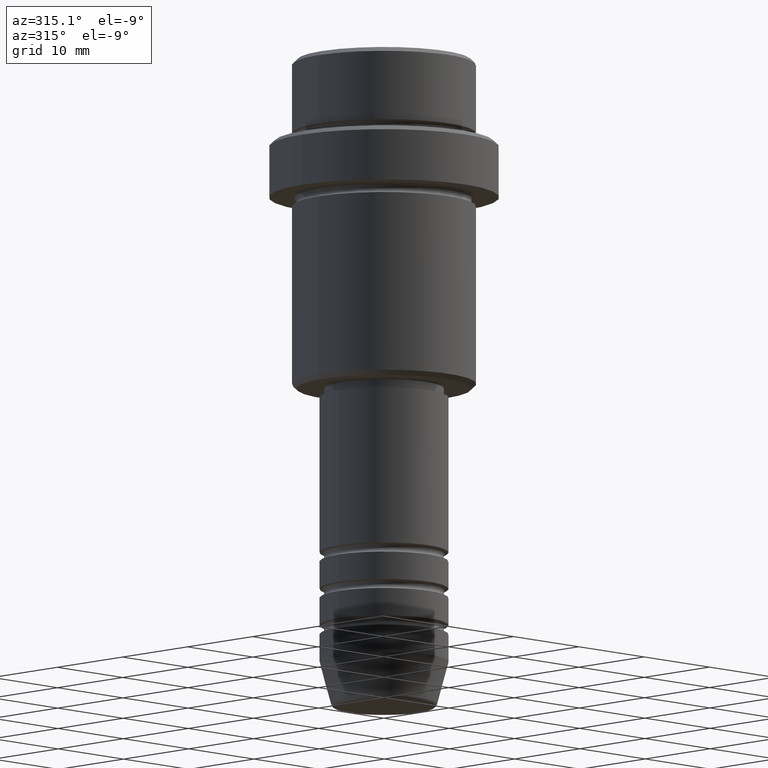
[diagram: clean part render]
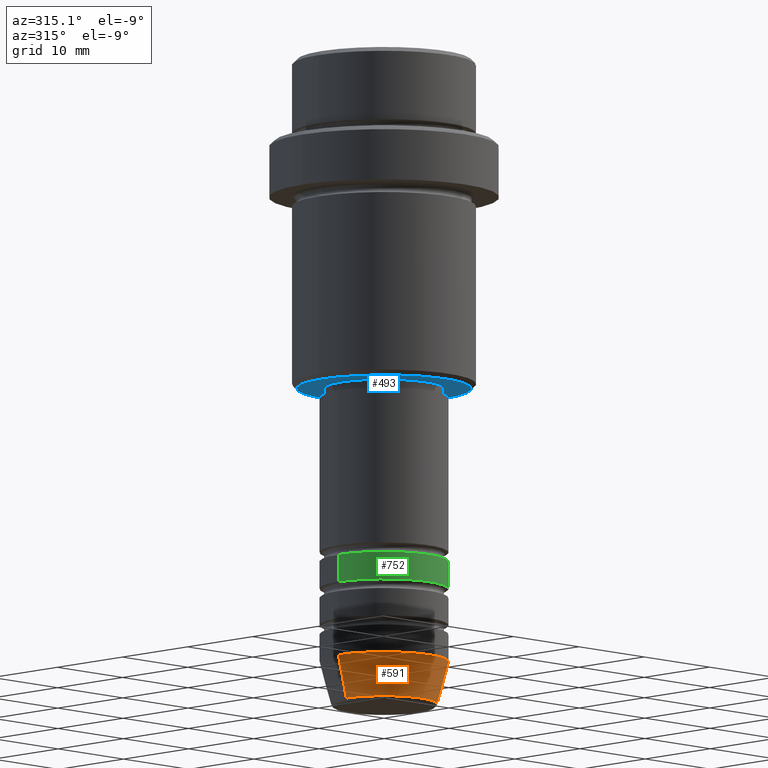
[diagram: same view with three faces highlighted in distinct colors, each labeled with its STEP entity id]
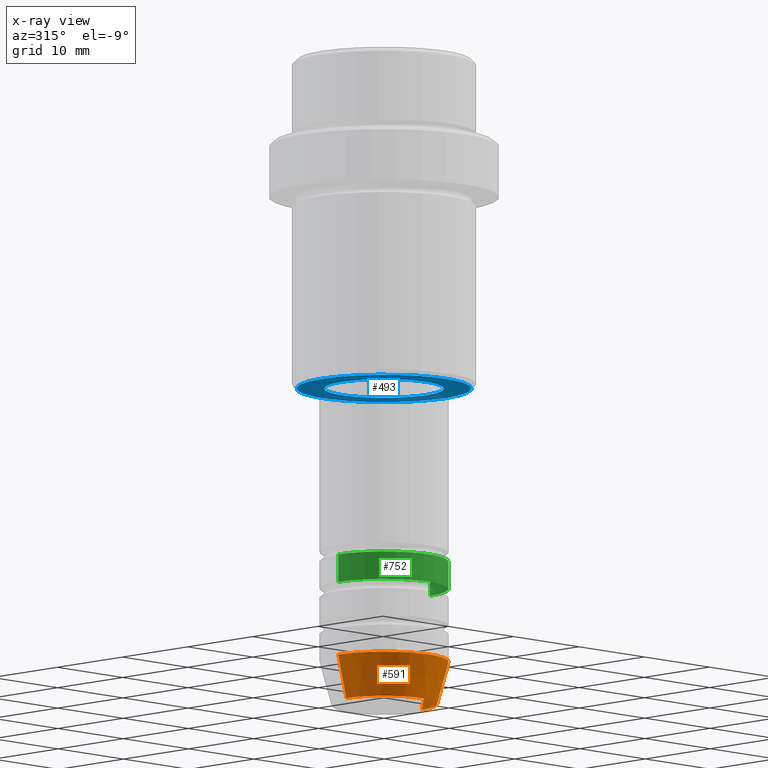
[diagram: x-ray of the same camera — body ghosted, the three highlighted faces saturated]
A machine part, auxiliary view with three faces highlighted in distinct colors.
The next image is the same camera in x-ray (body ghosted, the three faces saturated) — at least one of them is partly hidden behind the body in this view.
Their STEP definitions:

[orange] entity #591 — the highlighted conical surface has half-angle 15 deg.
#85 = DIRECTION ( 'NONE',  ( 0.2588190451025213501, 0.000000000000000000, 0.9659258262890680902 ) ) ;
#121 = VERTEX_POINT ( 'NONE', #774 ) ;
#148 = CARTESIAN_POINT ( 'NONE',  ( 7.000000000000000000, 0.000000000000000000, -66.00000000000000000 ) ) ;
#157 = VECTOR ( 'NONE', #829, 1000.000000000000000 ) ;
#187 = ORIENTED_EDGE ( 'NONE', *, *, #584, .F. ) ;
#256 = CARTESIAN_POINT ( 'NONE',  ( 7.000000000000000000, 0.000000000000000000, -66.00000000000000000 ) ) ;
#305 = AXIS2_PLACEMENT_3D ( 'NONE', #1260, #966, #994 ) ;
#341 = ORIENTED_EDGE ( 'NONE', *, *, #844, .T. ) ;
#374 = FACE_OUTER_BOUND ( 'NONE', #796, .T. ) ;
#387 = CARTESIAN_POINT ( 'NONE',  ( -7.000000000000000000, 8.572527594031473190E-16, -66.00000000000000000 ) ) ;
#403 = DIRECTION ( 'NONE',  ( 1.000000000000000000, 0.000000000000000000, 0.000000000000000000 ) ) ;
#443 = CIRCLE ( 'NONE', #1360, 7.000000000000000000 ) ;
#530 = CARTESIAN_POINT ( 'NONE',  ( -7.000000000000000000, 8.572527594031473190E-16, -66.00000000000000000 ) ) ;
#584 = EDGE_CURVE ( 'NONE', #1363, #963, #443, .T. ) ;
#591 = ADVANCED_FACE ( 'NONE', ( #374 ), #1246, .T. ) ;
#645 = EDGE_CURVE ( 'NONE', #121, #1363, #857, .T. ) ;
#707 = CARTESIAN_POINT ( 'NONE',  ( 5.759553456999433330, 0.000000000000000000, -70.62940952255127058 ) ) ;
#756 = ORIENTED_EDGE ( 'NONE', *, *, #645, .F. ) ;
#774 = CARTESIAN_POINT ( 'NONE',  ( -5.759553456999433330, 7.812973149831950787E-16, -70.62940952255127058 ) ) ;
#796 = EDGE_LOOP ( 'NONE', ( #756, #1394, #341, #187 ) ) ;
#809 = CARTESIAN_POINT ( 'NONE',  ( 0.000000000000000000, 0.000000000000000000, -66.00000000000000000 ) ) ;
#822 = LINE ( 'NONE', #256, #1114 ) ;
#829 = DIRECTION ( 'NONE',  ( -0.2588190451025213501, 3.169619151431772337E-17, 0.9659258262890680902 ) ) ;
#844 = EDGE_CURVE ( 'NONE', #1412, #963, #822, .T. ) ;
#855 = EDGE_CURVE ( 'NONE', #121, #1412, #1317, .T. ) ;
#857 = LINE ( 'NONE', #387, #157 ) ;
#963 = VERTEX_POINT ( 'NONE', #148 ) ;
#966 = DIRECTION ( 'NONE',  ( -0.000000000000000000, -0.000000000000000000, 1.000000000000000000 ) ) ;
#994 = DIRECTION ( 'NONE',  ( 1.000000000000000000, 0.000000000000000000, 0.000000000000000000 ) ) ;
#1061 = AXIS2_PLACEMENT_3D ( 'NONE', #1166, #1173, #403 ) ;
#1114 = VECTOR ( 'NONE', #85, 1000.000000000000000 ) ;
#1141 = DIRECTION ( 'NONE',  ( -0.000000000000000000, -0.000000000000000000, 1.000000000000000000 ) ) ;
#1166 = CARTESIAN_POINT ( 'NONE',  ( 0.000000000000000000, 0.000000000000000000, -70.62940952255127058 ) ) ;
#1173 = DIRECTION ( 'NONE',  ( -0.000000000000000000, -0.000000000000000000, 1.000000000000000000 ) ) ;
#1246 = CONICAL_SURFACE ( 'NONE', #305, 7.000000000000000000, 0.2617993877991500740 ) ;
#1260 = CARTESIAN_POINT ( 'NONE',  ( 0.000000000000000000, 0.000000000000000000, -66.00000000000000000 ) ) ;
#1317 = CIRCLE ( 'NONE', #1061, 5.759553456999433330 ) ;
#1360 = AXIS2_PLACEMENT_3D ( 'NONE', #809, #1141, #1368 ) ;
#1363 = VERTEX_POINT ( 'NONE', #530 ) ;
#1368 = DIRECTION ( 'NONE',  ( 1.000000000000000000, 0.000000000000000000, 0.000000000000000000 ) ) ;
#1394 = ORIENTED_EDGE ( 'NONE', *, *, #855, .T. ) ;
#1412 = VERTEX_POINT ( 'NONE', #707 ) ;

[blue] entity #493 — the highlighted planar face has unit normal (0, 0, -1).
#41 = CARTESIAN_POINT ( 'NONE',  ( 0.000000000000000000, 10.00000000000000000, -36.00000000000000711 ) ) ;
#87 = EDGE_CURVE ( 'NONE', #620, #1185, #1206, .T. ) ;
#113 = CARTESIAN_POINT ( 'NONE',  ( 0.000000000000000000, 0.000000000000000000, -36.00000000000000711 ) ) ;
#178 = EDGE_CURVE ( 'NONE', #590, #1401, #1110, .T. ) ;
#184 = CARTESIAN_POINT ( 'NONE',  ( 0.000000000000000000, 0.000000000000000000, -36.00000000000000711 ) ) ;
#248 = EDGE_LOOP ( 'NONE', ( #1103, #480 ) ) ;
#276 = AXIS2_PLACEMENT_3D ( 'NONE', #113, #322, #328 ) ;
#297 = FACE_BOUND ( 'NONE', #419, .T. ) ;
#310 = DIRECTION ( 'NONE',  ( -1.000000000000000000, 0.000000000000000000, 0.000000000000000000 ) ) ;
#319 = EDGE_CURVE ( 'NONE', #1401, #590, #1321, .T. ) ;
#322 = DIRECTION ( 'NONE',  ( -0.000000000000000000, -0.000000000000000000, 1.000000000000000000 ) ) ;
#328 = DIRECTION ( 'NONE',  ( 1.000000000000000000, 0.000000000000000000, 0.000000000000000000 ) ) ;
#419 = EDGE_LOOP ( 'NONE', ( #1377, #692 ) ) ;
#480 = ORIENTED_EDGE ( 'NONE', *, *, #550, .T. ) ;
#484 = DIRECTION ( 'NONE',  ( -1.000000000000000000, 0.000000000000000000, -0.000000000000000000 ) ) ;
#486 = CARTESIAN_POINT ( 'NONE',  ( -6.499999999999994671, 7.960204194457788574E-16, -36.00000000000000711 ) ) ;
#493 = ADVANCED_FACE ( 'NONE', ( #1271, #297 ), #1032, .T. ) ;
#517 = AXIS2_PLACEMENT_3D ( 'NONE', #41, #814, #484 ) ;
#550 = EDGE_CURVE ( 'NONE', #1185, #620, #580, .T. ) ;
#554 = DIRECTION ( 'NONE',  ( -1.000000000000000000, 0.000000000000000000, 0.000000000000000000 ) ) ;
#580 = CIRCLE ( 'NONE', #712, 9.500000000000001776 ) ;
#590 = VERTEX_POINT ( 'NONE', #486 ) ;
#620 = VERTEX_POINT ( 'NONE', #1050 ) ;
#692 = ORIENTED_EDGE ( 'NONE', *, *, #178, .T. ) ;
#712 = AXIS2_PLACEMENT_3D ( 'NONE', #1398, #856, #310 ) ;
#814 = DIRECTION ( 'NONE',  ( 0.000000000000000000, 0.000000000000000000, -1.000000000000000000 ) ) ;
#832 = AXIS2_PLACEMENT_3D ( 'NONE', #184, #1101, #554 ) ;
#856 = DIRECTION ( 'NONE',  ( 0.000000000000000000, 0.000000000000000000, -1.000000000000000000 ) ) ;
#865 = CARTESIAN_POINT ( 'NONE',  ( -9.500000000000001776, 1.194030629168669469E-15, -36.00000000000000711 ) ) ;
#901 = CARTESIAN_POINT ( 'NONE',  ( 6.499999999999994671, 0.000000000000000000, -36.00000000000000711 ) ) ;
#915 = DIRECTION ( 'NONE',  ( 1.000000000000000000, 0.000000000000000000, 0.000000000000000000 ) ) ;
#1007 = AXIS2_PLACEMENT_3D ( 'NONE', #1011, #1237, #915 ) ;
#1011 = CARTESIAN_POINT ( 'NONE',  ( 0.000000000000000000, 0.000000000000000000, -36.00000000000000711 ) ) ;
#1032 = PLANE ( 'NONE',  #517 ) ;
#1050 = CARTESIAN_POINT ( 'NONE',  ( 9.500000000000001776, 0.000000000000000000, -36.00000000000000711 ) ) ;
#1101 = DIRECTION ( 'NONE',  ( 0.000000000000000000, 0.000000000000000000, -1.000000000000000000 ) ) ;
#1103 = ORIENTED_EDGE ( 'NONE', *, *, #87, .T. ) ;
#1110 = CIRCLE ( 'NONE', #276, 6.499999999999994671 ) ;
#1185 = VERTEX_POINT ( 'NONE', #865 ) ;
#1206 = CIRCLE ( 'NONE', #832, 9.500000000000001776 ) ;
#1237 = DIRECTION ( 'NONE',  ( -0.000000000000000000, -0.000000000000000000, 1.000000000000000000 ) ) ;
#1271 = FACE_OUTER_BOUND ( 'NONE', #248, .T. ) ;
#1321 = CIRCLE ( 'NONE', #1007, 6.499999999999994671 ) ;
#1377 = ORIENTED_EDGE ( 'NONE', *, *, #319, .T. ) ;
#1398 = CARTESIAN_POINT ( 'NONE',  ( 0.000000000000000000, 0.000000000000000000, -36.00000000000000711 ) ) ;
#1401 = VERTEX_POINT ( 'NONE', #901 ) ;

[green] entity #752 — the highlighted cylindrical surface (partial cylindrical patch) has radius 7 mm, axis along (-0, -0, 1).
#51 = DIRECTION ( 'NONE',  ( -0.000000000000000000, -0.000000000000000000, 1.000000000000000000 ) ) ;
#77 = ORIENTED_EDGE ( 'NONE', *, *, #971, .F. ) ;
#88 = CARTESIAN_POINT ( 'NONE',  ( 0.000000000000000000, 0.000000000000000000, 0.000000000000000000 ) ) ;
#102 = DIRECTION ( 'NONE',  ( 1.000000000000000000, 0.000000000000000000, 0.000000000000000000 ) ) ;
#114 = AXIS2_PLACEMENT_3D ( 'NONE', #1046, #51, #498 ) ;
#154 = ORIENTED_EDGE ( 'NONE', *, *, #1145, .T. ) ;
#175 = CARTESIAN_POINT ( 'NONE',  ( 7.000000000000000000, 0.000000000000000000, 0.000000000000000000 ) ) ;
#209 = VERTEX_POINT ( 'NONE', #757 ) ;
#238 = EDGE_LOOP ( 'NONE', ( #77, #1347, #154, #285 ) ) ;
#252 = VECTOR ( 'NONE', #1068, 1000.000000000000000 ) ;
#280 = CARTESIAN_POINT ( 'NONE',  ( -7.000000000000000000, 8.572527594031473190E-16, -54.99999999999988631 ) ) ;
#285 = ORIENTED_EDGE ( 'NONE', *, *, #1067, .F. ) ;
#325 = FACE_OUTER_BOUND ( 'NONE', #238, .T. ) ;
#331 = VERTEX_POINT ( 'NONE', #676 ) ;
#472 = LINE ( 'NONE', #909, #860 ) ;
#487 = CIRCLE ( 'NONE', #114, 7.000000000000000000 ) ;
#497 = VERTEX_POINT ( 'NONE', #280 ) ;
#498 = DIRECTION ( 'NONE',  ( 1.000000000000000000, 0.000000000000000000, 0.000000000000000000 ) ) ;
#676 = CARTESIAN_POINT ( 'NONE',  ( 7.000000000000000000, 0.000000000000000000, -57.99999999999989342 ) ) ;
#706 = AXIS2_PLACEMENT_3D ( 'NONE', #88, #987, #102 ) ;
#752 = ADVANCED_FACE ( 'NONE', ( #325 ), #851, .T. ) ;
#757 = CARTESIAN_POINT ( 'NONE',  ( -7.000000000000000000, 8.572527594031473190E-16, -57.99999999999989342 ) ) ;
#789 = EDGE_CURVE ( 'NONE', #209, #331, #1151, .T. ) ;
#790 = CARTESIAN_POINT ( 'NONE',  ( 0.000000000000000000, 0.000000000000000000, -57.99999999999989342 ) ) ;
#851 = CYLINDRICAL_SURFACE ( 'NONE', #706, 7.000000000000000000 ) ;
#860 = VECTOR ( 'NONE', #1345, 1000.000000000000000 ) ;
#909 = CARTESIAN_POINT ( 'NONE',  ( -7.000000000000000000, 8.572527594031473190E-16, 0.000000000000000000 ) ) ;
#971 = EDGE_CURVE ( 'NONE', #209, #497, #472, .T. ) ;
#987 = DIRECTION ( 'NONE',  ( -0.000000000000000000, -0.000000000000000000, 1.000000000000000000 ) ) ;
#995 = VERTEX_POINT ( 'NONE', #1263 ) ;
#1046 = CARTESIAN_POINT ( 'NONE',  ( 0.000000000000000000, 0.000000000000000000, -54.99999999999988631 ) ) ;
#1067 = EDGE_CURVE ( 'NONE', #497, #995, #487, .T. ) ;
#1068 = DIRECTION ( 'NONE',  ( -0.000000000000000000, -0.000000000000000000, 1.000000000000000000 ) ) ;
#1087 = AXIS2_PLACEMENT_3D ( 'NONE', #790, #1219, #1233 ) ;
#1145 = EDGE_CURVE ( 'NONE', #331, #995, #1277, .T. ) ;
#1151 = CIRCLE ( 'NONE', #1087, 7.000000000000000000 ) ;
#1219 = DIRECTION ( 'NONE',  ( -0.000000000000000000, -0.000000000000000000, 1.000000000000000000 ) ) ;
#1233 = DIRECTION ( 'NONE',  ( 1.000000000000000000, 0.000000000000000000, 0.000000000000000000 ) ) ;
#1263 = CARTESIAN_POINT ( 'NONE',  ( 7.000000000000000000, 0.000000000000000000, -54.99999999999988631 ) ) ;
#1277 = LINE ( 'NONE', #175, #252 ) ;
#1345 = DIRECTION ( 'NONE',  ( -0.000000000000000000, -0.000000000000000000, 1.000000000000000000 ) ) ;
#1347 = ORIENTED_EDGE ( 'NONE', *, *, #789, .T. ) ;